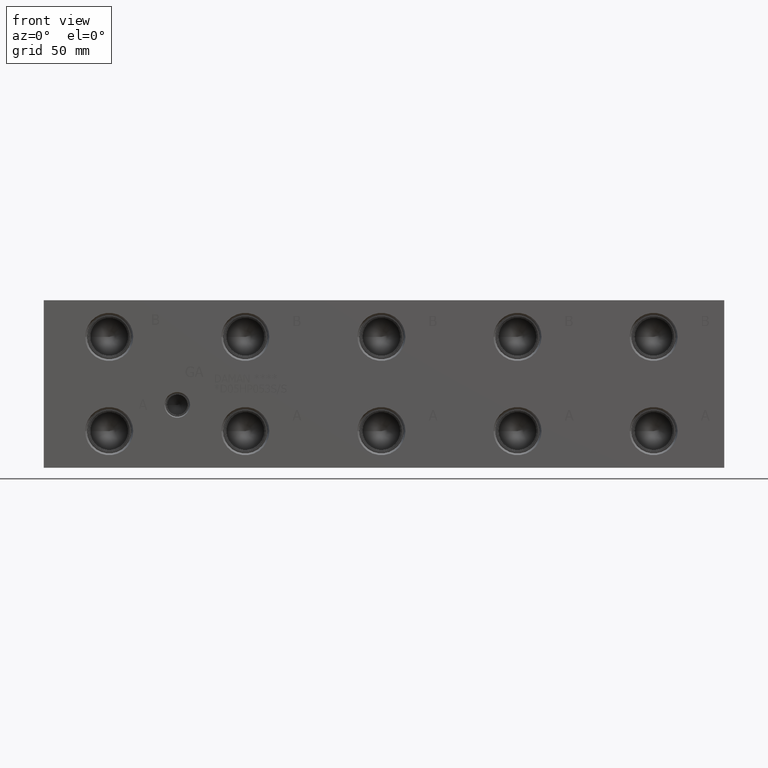
[diagram: clean part render]
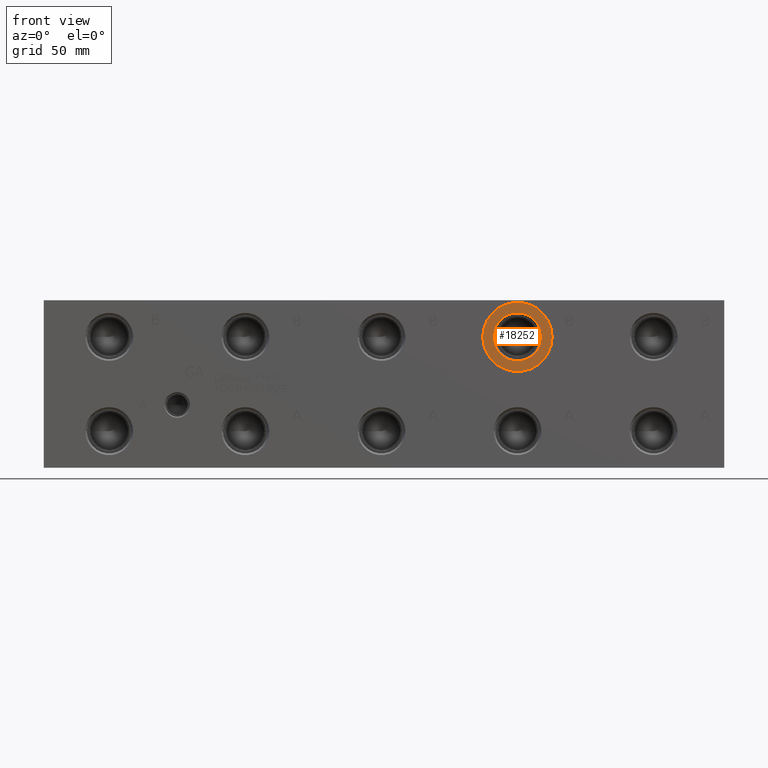
[diagram: same view with one face highlighted and labeled with its STEP entity id]
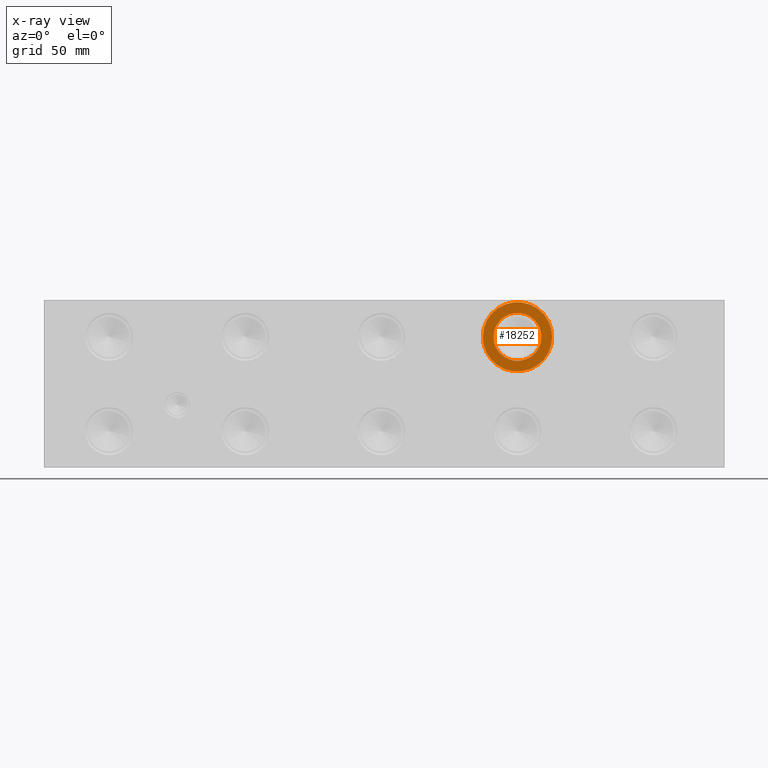
[diagram: x-ray of the same camera — body ghosted, the highlighted face saturated]
A machine part, front view. The second image highlights one B-rep face of the part: STEP entity #18252.
The next image is the same camera in x-ray: the body ghosted, the highlighted face saturated — about 0% of this face is hidden behind the body in this view.
In plain terms, the highlighted planar face has unit normal (0, 1, 0).
Its self-contained STEP definition (entity closure, byte-faithful):
#592=CIRCLE('',#19101,21.0185);
#593=CIRCLE('',#19102,21.0185);
#594=CIRCLE('',#19104,14.5923);
#595=CIRCLE('',#19105,14.5923);
#1603=FACE_BOUND('',#3424,.T.);
#2368=FACE_OUTER_BOUND('',#3423,.T.);
#3423=EDGE_LOOP('',(#14992,#14993));
#3424=EDGE_LOOP('',(#14994,#14995));
#8203=VERTEX_POINT('',#30782);
#8204=VERTEX_POINT('',#30784);
#8205=VERTEX_POINT('',#30788);
#8206=VERTEX_POINT('',#30789);
#10604=EDGE_CURVE('',#8203,#8204,#592,.T.);
#10605=EDGE_CURVE('',#8204,#8203,#593,.T.);
#10606=EDGE_CURVE('',#8205,#8206,#594,.T.);
#10607=EDGE_CURVE('',#8206,#8205,#595,.T.);
#14992=ORIENTED_EDGE('',*,*,#10605,.F.);
#14993=ORIENTED_EDGE('',*,*,#10604,.F.);
#14994=ORIENTED_EDGE('',*,*,#10606,.T.);
#14995=ORIENTED_EDGE('',*,*,#10607,.T.);
#16903=PLANE('',#19103);
#18252=ADVANCED_FACE('',(#2368,#1603),#16903,.F.);
#19101=AXIS2_PLACEMENT_3D('',#30785,#22278,#22279);
#19102=AXIS2_PLACEMENT_3D('',#30786,#22280,#22281);
#19103=AXIS2_PLACEMENT_3D('',#30787,#22282,#22283);
#19104=AXIS2_PLACEMENT_3D('',#30790,#22284,#22285);
#19105=AXIS2_PLACEMENT_3D('',#30791,#22286,#22287);
#22278=DIRECTION('center_axis',(0.,1.,0.));
#22279=DIRECTION('ref_axis',(1.,0.,0.));
#22280=DIRECTION('center_axis',(0.,1.,0.));
#22281=DIRECTION('ref_axis',(1.,0.,0.));
#22282=DIRECTION('center_axis',(0.,1.,0.));
#22283=DIRECTION('ref_axis',(0.,0.,1.));
#22284=DIRECTION('center_axis',(0.,1.,0.));
#22285=DIRECTION('ref_axis',(1.,0.,0.));
#22286=DIRECTION('center_axis',(0.,1.,0.));
#22287=DIRECTION('ref_axis',(1.,0.,0.));
#30782=CARTESIAN_POINT('',(266.3063,0.7874,79.375));
#30784=CARTESIAN_POINT('',(308.3433,0.7874,79.375));
#30785=CARTESIAN_POINT('Origin',(287.3248,0.7874,79.375));
#30786=CARTESIAN_POINT('Origin',(287.3248,0.7874,79.375));
#30787=CARTESIAN_POINT('Origin',(301.9171,0.7874,79.375));
#30788=CARTESIAN_POINT('',(301.9171,0.7874,79.375));
#30789=CARTESIAN_POINT('',(272.7325,0.787399999999995,79.375));
#30790=CARTESIAN_POINT('Origin',(287.3248,0.7874,79.375));
#30791=CARTESIAN_POINT('Origin',(287.3248,0.7874,79.375));